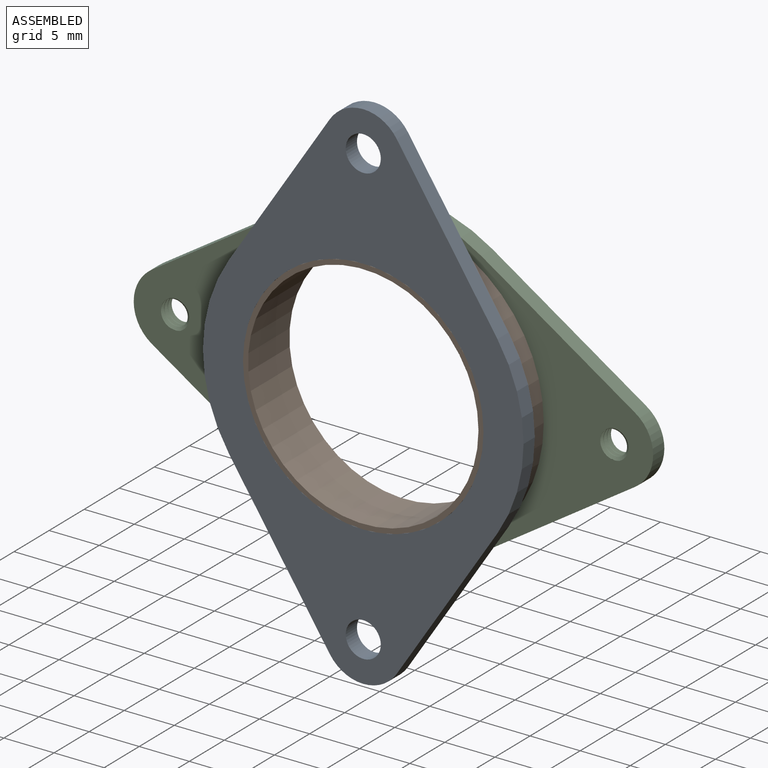
[diagram: assembled view]
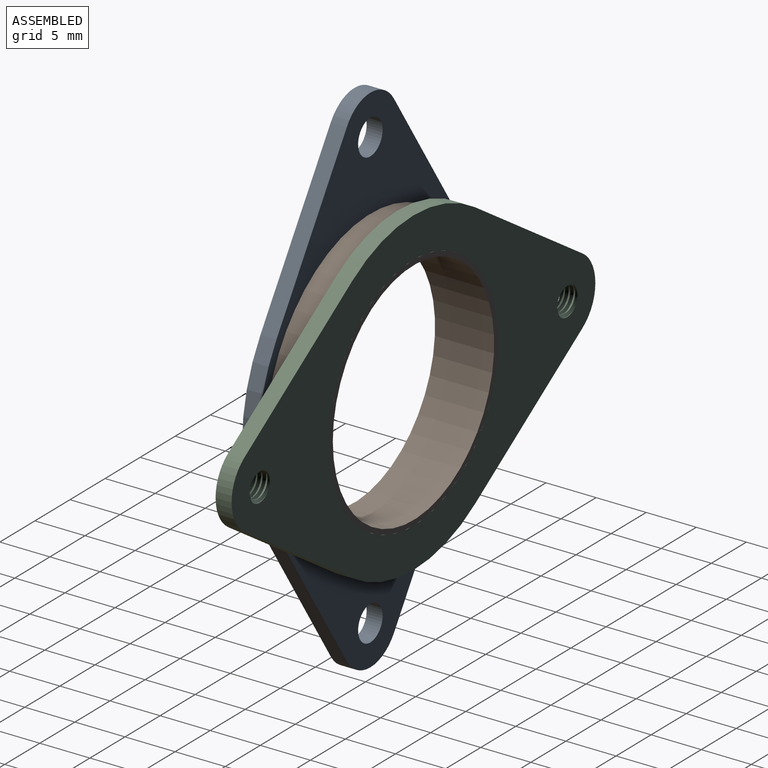
[diagram: assembled view, second angle]
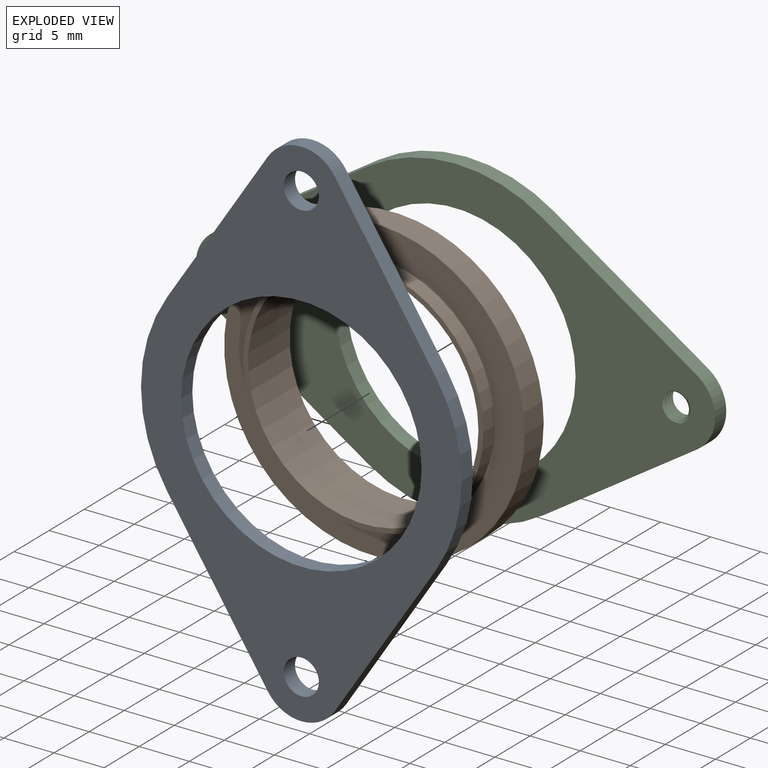
[diagram: exploded view]
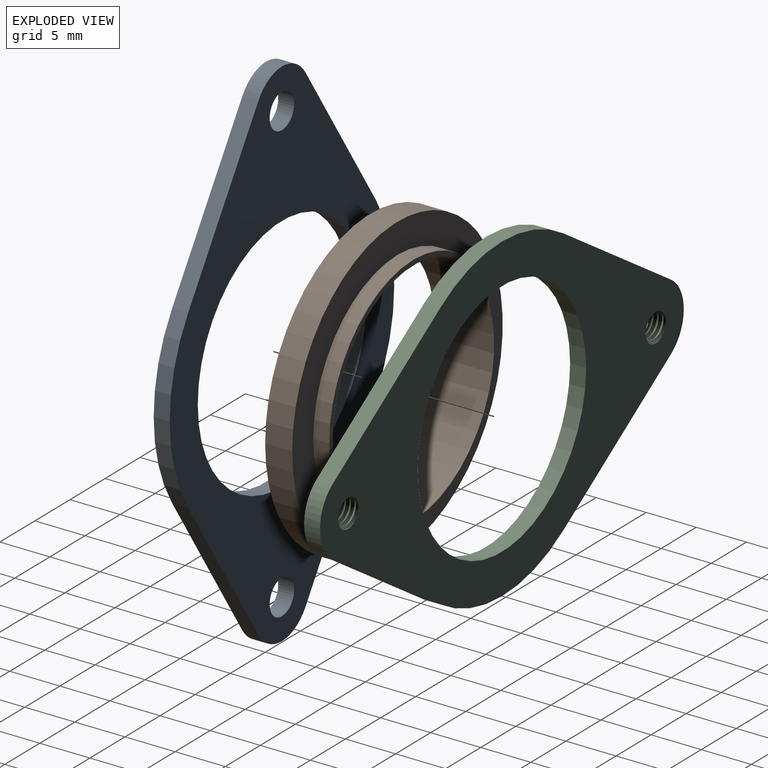
[diagram: exploded view, second angle]
ASSEMBLY  parts=3 mates=2
PART A: 13 faces, bbox 32x1.6x51.8 mm
  f0: cylinder r=1.75mm len=3.5mm, axis (0,1,0), area 17.6mm2, adj f11,f12
  f1: cylinder r=12mm len=24mm, axis (0,1,0), area 120.6mm2, adj f11,f12
  f2: cylinder r=1.75mm len=3.5mm, axis (0,1,0), area 17.6mm2, adj f11,f12
  f3: plane 15.35x10.04mm, normal (-0.84,0,-0.55), area 29.3mm2, adj f4,f10,f11,f12
  f4: cylinder r=4mm len=6.69mm, axis (0,1,0), area 12.7mm2, adj f3,f5,f11,f12
  f5: plane 15.35x10.04mm, normal (0.84,0,-0.55), area 29.3mm2, adj f4,f6,f11,f12
  f6: cylinder r=16mm len=17.52mm, axis (0,1,0), area 29.7mm2, adj f5,f7,f11,f12
  f7: plane 15.35x10.04mm, normal (0.84,0,0.55), area 29.3mm2, adj f6,f8,f11,f12
  f8: cylinder r=4mm len=6.69mm, axis (0,1,0), area 12.7mm2, adj f7,f9,f11,f12
  f9: plane 15.35x10.04mm, normal (-0.84,0,0.55), area 29.3mm2, adj f8,f10,f11,f12
  f10: cylinder r=16mm len=17.52mm, axis (0,1,0), area 29.7mm2, adj f3,f9,f11,f12
  f11: plane 51.84x32mm, normal (0,1,0), area 590.4mm2, adj f0,f1,f2,f3,f4,f5,f6,f7
  f12: plane 51.84x32mm, normal (0,-1,0), area 590.4mm2, adj f0,f1,f2,f3,f4,f5,f6,f7
PART B: 8 faces, bbox 30x5.9x30 mm
  f0: cylinder r=12mm len=24mm, axis (0,1,0), area 120.6mm2, adj f1,f4
  f1: plane 24x24mm, normal (0,1,0), area 36.9mm2, adj f0,f5
  f2: plane 30x30mm, normal (0,-1,0), area 254.5mm2, adj f3,f6
  f3: cylinder r=15mm len=30mm, axis (0,1,0), area 254.5mm2, adj f2,f4
  f4: plane 30x30mm, normal (0,1,0), area 254.5mm2, adj f0,f3
  f5: cylinder r=11.5mm len=23mm, axis (0,-1,0), area 426.3mm2, adj f1,f7
  f6: cylinder r=12mm len=24mm, axis (0,-1,0), area 120.6mm2, adj f2,f7
  f7: plane 24x24mm, normal (0,-1,0), area 36.9mm2, adj f5,f6
PART C: 19 faces, bbox 52x2.1x32.1 mm
  f0: cylinder r=1.54mm len=3.09mm, axis (0,1,0), area 3.6mm2, adj f1,f2,f3,f18
  f1: bspline ~3.59x3.56mm, area 9.1mm2, adj f0,f3,f8,f18
  f2: bspline ~3.59x3.57mm, area 9.1mm2, adj f0,f3,f8,f18
  f3: plane 51.98x32.14mm, normal (0,1,0), area 597mm2, adj f0,f1,f2,f4,f5,f6,f7,f8
  f4: cylinder r=1.54mm len=3.09mm, axis (0,1,0), area 3.6mm2, adj f3,f5,f6,f18
  f5: bspline ~3.59x3.56mm, area 9.1mm2, adj f3,f4,f7,f18
  f6: bspline ~3.59x3.57mm, area 9.1mm2, adj f3,f4,f7,f18
  f7: cylinder r=1.26mm len=2.53mm, axis (0,1,0), area 1.5mm2, adj f3,f5,f6,f18
  f8: cylinder r=1.26mm len=2.53mm, axis (0,1,0), area 1.5mm2, adj f1,f2,f3,f18
  f9: cylinder r=12mm len=24mm, axis (0,1,0), area 120.6mm2, adj f3,f18
  f10: plane 15.35x10.04mm, normal (-0.55,0,-0.84), area 29.3mm2, adj f3,f11,f17,f18
  f11: cylinder r=16mm len=17.52mm, axis (0,1,0), area 29.7mm2, adj f3,f10,f12,f18
  f12: plane 15.35x10.04mm, normal (0.55,0,-0.84), area 29.3mm2, adj f3,f11,f13,f18
  f13: cylinder r=4mm len=6.69mm, axis (0,1,0), area 12.7mm2, adj f3,f12,f14,f18
  f14: plane 15.35x10.04mm, normal (0.55,0,0.84), area 29.3mm2, adj f3,f13,f15,f18
  f15: cylinder r=16mm len=17.52mm, axis (0,1,0), area 29.7mm2, adj f3,f14,f16,f18
  f16: plane 15.35x10.04mm, normal (-0.55,0,0.84), area 29.3mm2, adj f3,f15,f17,f18
  f17: cylinder r=4mm len=6.69mm, axis (0,1,0), area 12.7mm2, adj f3,f10,f16,f18
  f18: plane 51.98x32.14mm, normal (0,-1,0), area 597mm2, adj f0,f1,f2,f4,f5,f6,f7,f8
PLACE A t=(-220.58,-16.52,-53.27)mm
PLACE B t=(-220.58,-16.52,-53.27)mm
PLACE C t=(-220.58,-16.52,-53.27)mm
MATE fastened A.f1 <-> B.f0  axis (0,1,0) through (-220.58,-14.92,-53.27)mm
MATE fastened C.f9 <-> B.f0  axis (0,-1,0) through (-220.58,-12.22,-53.27)mm
